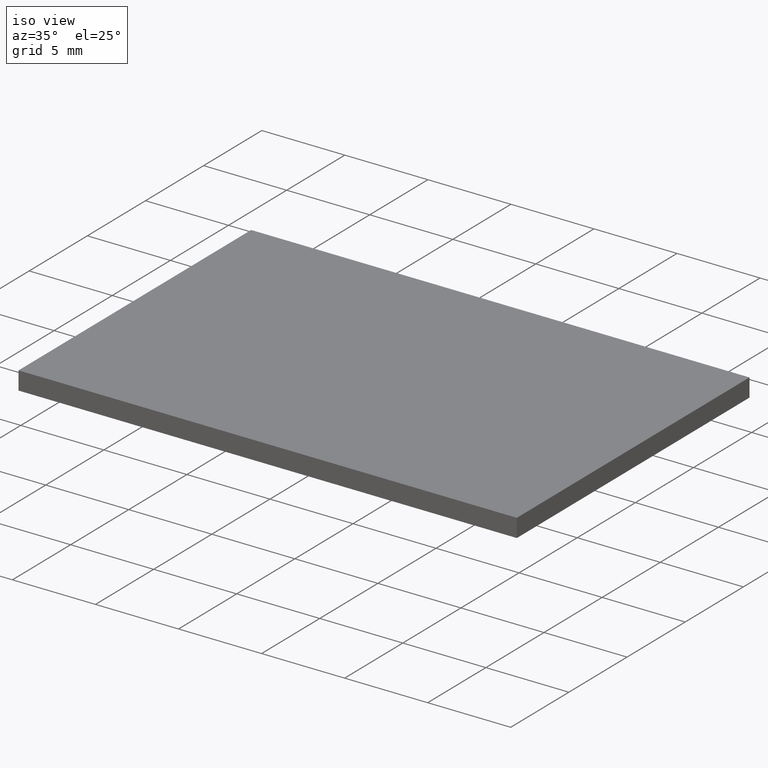
[diagram: clean part render]
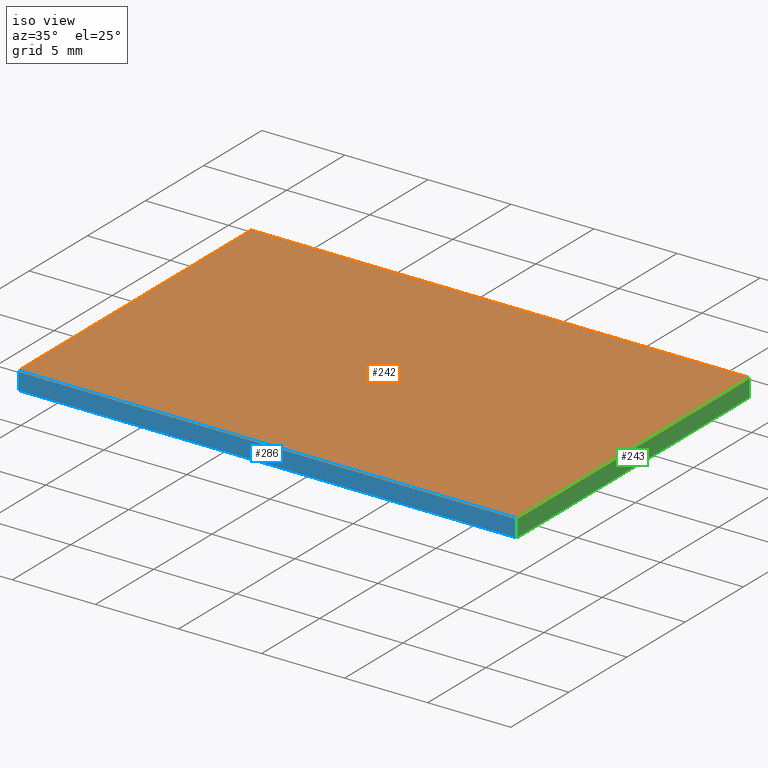
[diagram: same view with three faces highlighted in distinct colors, each labeled with its STEP entity id]
A machine part, iso view with three faces highlighted in distinct colors.
Their STEP definitions:

[orange] entity #242 — the highlighted planar face has unit normal (-0, 0, 1).
#4 = VERTEX_POINT ( 'NONE', #248 ) ;
#5 = EDGE_CURVE ( 'NONE', #4, #204, #113, .T. ) ;
#6 = VECTOR ( 'NONE', #92, 1000.000000000000000 ) ;
#23 = CARTESIAN_POINT ( 'NONE',  ( -11.75128678603609700, 12.30936728662558900, 1.100000000000000100 ) ) ;
#26 = ORIENTED_EDGE ( 'NONE', *, *, #129, .T. ) ;
#41 = CARTESIAN_POINT ( 'NONE',  ( 0.0000000000000000000, 0.0000000000000000000, 1.100000000000000100 ) ) ;
#42 = EDGE_CURVE ( 'NONE', #204, #66, #46, .T. ) ;
#46 = LINE ( 'NONE', #223, #264 ) ;
#66 = VERTEX_POINT ( 'NONE', #142 ) ;
#68 = FACE_OUTER_BOUND ( 'NONE', #287, .T. ) ;
#74 = DIRECTION ( 'NONE',  ( 1.000000000000000000, 0.0000000000000000000, 0.0000000000000000000 ) ) ;
#75 = DIRECTION ( 'NONE',  ( -1.734723475976807100E-016, 1.000000000000000000, -0.0000000000000000000 ) ) ;
#92 = DIRECTION ( 'NONE',  ( 1.734723475976807100E-016, -1.000000000000000000, 0.0000000000000000000 ) ) ;
#95 = DIRECTION ( 'NONE',  ( -1.000000000000000000, -0.0000000000000000000, -0.0000000000000000000 ) ) ;
#97 = ORIENTED_EDGE ( 'NONE', *, *, #178, .T. ) ;
#102 = CARTESIAN_POINT ( 'NONE',  ( -11.75128678603609300, -7.690632713374410100, 1.100000000000000100 ) ) ;
#113 = LINE ( 'NONE', #201, #237 ) ;
#123 = DIRECTION ( 'NONE',  ( 1.000000000000000000, 0.0000000000000000000, 0.0000000000000000000 ) ) ;
#129 = EDGE_CURVE ( 'NONE', #289, #4, #293, .T. ) ;
#137 = ORIENTED_EDGE ( 'NONE', *, *, #5, .T. ) ;
#142 = CARTESIAN_POINT ( 'NONE',  ( -11.75128678603609700, 12.30936728662558900, 1.100000000000000100 ) ) ;
#143 = PLANE ( 'NONE',  #222 ) ;
#154 = VECTOR ( 'NONE', #123, 1000.000000000000000 ) ;
#165 = LINE ( 'NONE', #23, #6 ) ;
#178 = EDGE_CURVE ( 'NONE', #66, #289, #165, .T. ) ;
#200 = DIRECTION ( 'NONE',  ( -0.0000000000000000000, 0.0000000000000000000, 1.000000000000000000 ) ) ;
#201 = CARTESIAN_POINT ( 'NONE',  ( 18.24871321396390300, 12.30936728662558900, 1.100000000000000100 ) ) ;
#204 = VERTEX_POINT ( 'NONE', #219 ) ;
#219 = CARTESIAN_POINT ( 'NONE',  ( 18.24871321396390300, 12.30936728662558900, 1.100000000000000100 ) ) ;
#222 = AXIS2_PLACEMENT_3D ( 'NONE', #41, #200, #74 ) ;
#223 = CARTESIAN_POINT ( 'NONE',  ( -11.75128678603609700, 12.30936728662558900, 1.100000000000000100 ) ) ;
#237 = VECTOR ( 'NONE', #75, 1000.000000000000000 ) ;
#242 = ADVANCED_FACE ( 'NONE', ( #68 ), #143, .T. ) ;
#248 = CARTESIAN_POINT ( 'NONE',  ( 18.24871321396390700, -7.690632713374410100, 1.100000000000000100 ) ) ;
#264 = VECTOR ( 'NONE', #95, 1000.000000000000000 ) ;
#287 = EDGE_LOOP ( 'NONE', ( #97, #26, #137, #297 ) ) ;
#289 = VERTEX_POINT ( 'NONE', #102 ) ;
#293 = LINE ( 'NONE', #295, #154 ) ;
#295 = CARTESIAN_POINT ( 'NONE',  ( -11.75128678603609300, -7.690632713374410100, 1.100000000000000100 ) ) ;
#297 = ORIENTED_EDGE ( 'NONE', *, *, #42, .T. ) ;

[blue] entity #286 — the highlighted planar face has unit normal (0, 1, 0).
#1 = CARTESIAN_POINT ( 'NONE',  ( 18.24871321396390700, -7.690632713374410100, 0.0000000000000000000 ) ) ;
#4 = VERTEX_POINT ( 'NONE', #248 ) ;
#10 = EDGE_LOOP ( 'NONE', ( #313, #280, #281, #107 ) ) ;
#13 = FACE_OUTER_BOUND ( 'NONE', #10, .T. ) ;
#16 = VECTOR ( 'NONE', #172, 1000.000000000000000 ) ;
#21 = EDGE_CURVE ( 'NONE', #289, #79, #159, .T. ) ;
#30 = CARTESIAN_POINT ( 'NONE',  ( -11.75128678603609300, -7.690632713374410100, 1.100000000000000100 ) ) ;
#60 = EDGE_CURVE ( 'NONE', #79, #133, #134, .T. ) ;
#79 = VERTEX_POINT ( 'NONE', #272 ) ;
#102 = CARTESIAN_POINT ( 'NONE',  ( -11.75128678603609300, -7.690632713374410100, 1.100000000000000100 ) ) ;
#105 = LINE ( 'NONE', #124, #161 ) ;
#107 = ORIENTED_EDGE ( 'NONE', *, *, #21, .T. ) ;
#119 = CARTESIAN_POINT ( 'NONE',  ( -11.75128678603609300, -7.690632713374410100, 1.100000000000000100 ) ) ;
#122 = EDGE_CURVE ( 'NONE', #4, #133, #105, .T. ) ;
#123 = DIRECTION ( 'NONE',  ( 1.000000000000000000, 0.0000000000000000000, 0.0000000000000000000 ) ) ;
#124 = CARTESIAN_POINT ( 'NONE',  ( 18.24871321396390700, -7.690632713374410100, 1.100000000000000100 ) ) ;
#127 = AXIS2_PLACEMENT_3D ( 'NONE', #30, #255, #234 ) ;
#129 = EDGE_CURVE ( 'NONE', #289, #4, #293, .T. ) ;
#133 = VERTEX_POINT ( 'NONE', #1 ) ;
#134 = LINE ( 'NONE', #314, #16 ) ;
#145 = DIRECTION ( 'NONE',  ( -0.0000000000000000000, -0.0000000000000000000, -1.000000000000000000 ) ) ;
#154 = VECTOR ( 'NONE', #123, 1000.000000000000000 ) ;
#159 = LINE ( 'NONE', #119, #197 ) ;
#161 = VECTOR ( 'NONE', #145, 1000.000000000000000 ) ;
#172 = DIRECTION ( 'NONE',  ( 1.000000000000000000, 0.0000000000000000000, 0.0000000000000000000 ) ) ;
#197 = VECTOR ( 'NONE', #294, 1000.000000000000000 ) ;
#234 = DIRECTION ( 'NONE',  ( 0.0000000000000000000, -0.0000000000000000000, 1.000000000000000000 ) ) ;
#235 = PLANE ( 'NONE',  #127 ) ;
#248 = CARTESIAN_POINT ( 'NONE',  ( 18.24871321396390700, -7.690632713374410100, 1.100000000000000100 ) ) ;
#255 = DIRECTION ( 'NONE',  ( 0.0000000000000000000, 1.000000000000000000, 0.0000000000000000000 ) ) ;
#272 = CARTESIAN_POINT ( 'NONE',  ( -11.75128678603609300, -7.690632713374410100, 0.0000000000000000000 ) ) ;
#280 = ORIENTED_EDGE ( 'NONE', *, *, #122, .F. ) ;
#281 = ORIENTED_EDGE ( 'NONE', *, *, #129, .F. ) ;
#286 = ADVANCED_FACE ( 'NONE', ( #13 ), #235, .F. ) ;
#289 = VERTEX_POINT ( 'NONE', #102 ) ;
#293 = LINE ( 'NONE', #295, #154 ) ;
#294 = DIRECTION ( 'NONE',  ( -0.0000000000000000000, -0.0000000000000000000, -1.000000000000000000 ) ) ;
#295 = CARTESIAN_POINT ( 'NONE',  ( -11.75128678603609300, -7.690632713374410100, 1.100000000000000100 ) ) ;
#313 = ORIENTED_EDGE ( 'NONE', *, *, #60, .T. ) ;
#314 = CARTESIAN_POINT ( 'NONE',  ( -11.75128678603609300, -7.690632713374410100, 0.0000000000000000000 ) ) ;

[green] entity #243 — the highlighted planar face has unit normal (-1, -0, 0).
#1 = CARTESIAN_POINT ( 'NONE',  ( 18.24871321396390700, -7.690632713374410100, 0.0000000000000000000 ) ) ;
#4 = VERTEX_POINT ( 'NONE', #248 ) ;
#5 = EDGE_CURVE ( 'NONE', #4, #204, #113, .T. ) ;
#15 = VERTEX_POINT ( 'NONE', #226 ) ;
#36 = EDGE_CURVE ( 'NONE', #204, #15, #121, .T. ) ;
#47 = DIRECTION ( 'NONE',  ( -0.0000000000000000000, -0.0000000000000000000, -1.000000000000000000 ) ) ;
#65 = EDGE_LOOP ( 'NONE', ( #77, #213, #196, #91 ) ) ;
#75 = DIRECTION ( 'NONE',  ( -1.734723475976807100E-016, 1.000000000000000000, -0.0000000000000000000 ) ) ;
#77 = ORIENTED_EDGE ( 'NONE', *, *, #93, .T. ) ;
#84 = DIRECTION ( 'NONE',  ( 1.734723475976806800E-016, -1.000000000000000000, 0.0000000000000000000 ) ) ;
#91 = ORIENTED_EDGE ( 'NONE', *, *, #122, .T. ) ;
#93 = EDGE_CURVE ( 'NONE', #133, #15, #168, .T. ) ;
#98 = DIRECTION ( 'NONE',  ( -1.000000000000000000, -1.734723475976806800E-016, 0.0000000000000000000 ) ) ;
#105 = LINE ( 'NONE', #124, #161 ) ;
#113 = LINE ( 'NONE', #201, #237 ) ;
#121 = LINE ( 'NONE', #173, #261 ) ;
#122 = EDGE_CURVE ( 'NONE', #4, #133, #105, .T. ) ;
#124 = CARTESIAN_POINT ( 'NONE',  ( 18.24871321396390700, -7.690632713374410100, 1.100000000000000100 ) ) ;
#133 = VERTEX_POINT ( 'NONE', #1 ) ;
#145 = DIRECTION ( 'NONE',  ( -0.0000000000000000000, -0.0000000000000000000, -1.000000000000000000 ) ) ;
#161 = VECTOR ( 'NONE', #145, 1000.000000000000000 ) ;
#168 = LINE ( 'NONE', #202, #177 ) ;
#173 = CARTESIAN_POINT ( 'NONE',  ( 18.24871321396390300, 12.30936728662558900, 1.100000000000000100 ) ) ;
#177 = VECTOR ( 'NONE', #247, 1000.000000000000000 ) ;
#184 = AXIS2_PLACEMENT_3D ( 'NONE', #210, #98, #84 ) ;
#196 = ORIENTED_EDGE ( 'NONE', *, *, #5, .F. ) ;
#201 = CARTESIAN_POINT ( 'NONE',  ( 18.24871321396390300, 12.30936728662558900, 1.100000000000000100 ) ) ;
#202 = CARTESIAN_POINT ( 'NONE',  ( 18.24871321396390300, 12.30936728662558900, 0.0000000000000000000 ) ) ;
#204 = VERTEX_POINT ( 'NONE', #219 ) ;
#210 = CARTESIAN_POINT ( 'NONE',  ( 18.24871321396390300, 12.30936728662558900, 1.100000000000000100 ) ) ;
#213 = ORIENTED_EDGE ( 'NONE', *, *, #36, .F. ) ;
#216 = FACE_OUTER_BOUND ( 'NONE', #65, .T. ) ;
#219 = CARTESIAN_POINT ( 'NONE',  ( 18.24871321396390300, 12.30936728662558900, 1.100000000000000100 ) ) ;
#226 = CARTESIAN_POINT ( 'NONE',  ( 18.24871321396390300, 12.30936728662558900, 0.0000000000000000000 ) ) ;
#237 = VECTOR ( 'NONE', #75, 1000.000000000000000 ) ;
#243 = ADVANCED_FACE ( 'NONE', ( #216 ), #298, .F. ) ;
#247 = DIRECTION ( 'NONE',  ( -1.734723475976807100E-016, 1.000000000000000000, -0.0000000000000000000 ) ) ;
#248 = CARTESIAN_POINT ( 'NONE',  ( 18.24871321396390700, -7.690632713374410100, 1.100000000000000100 ) ) ;
#261 = VECTOR ( 'NONE', #47, 1000.000000000000000 ) ;
#298 = PLANE ( 'NONE',  #184 ) ;